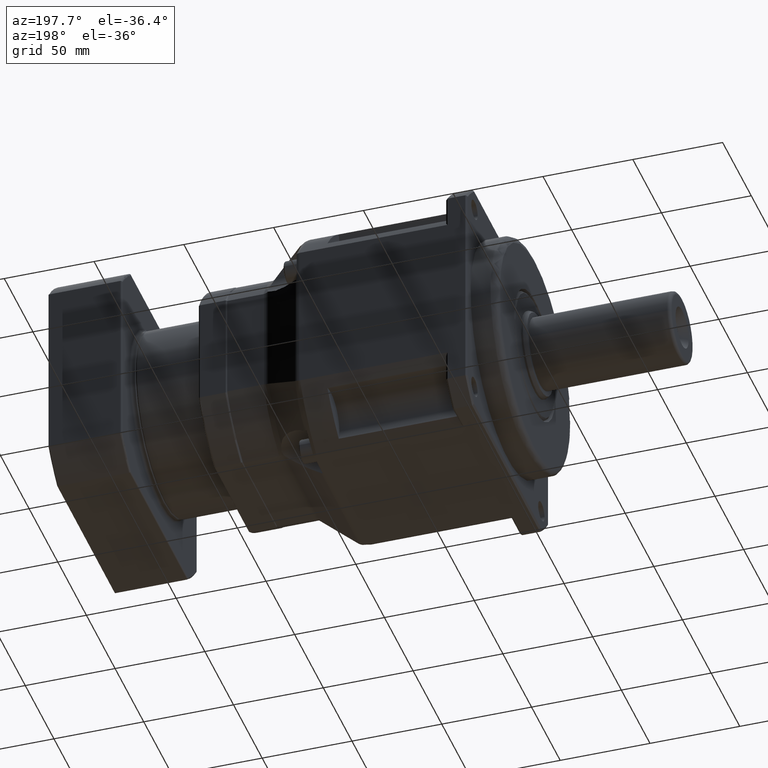
[diagram: clean part render]
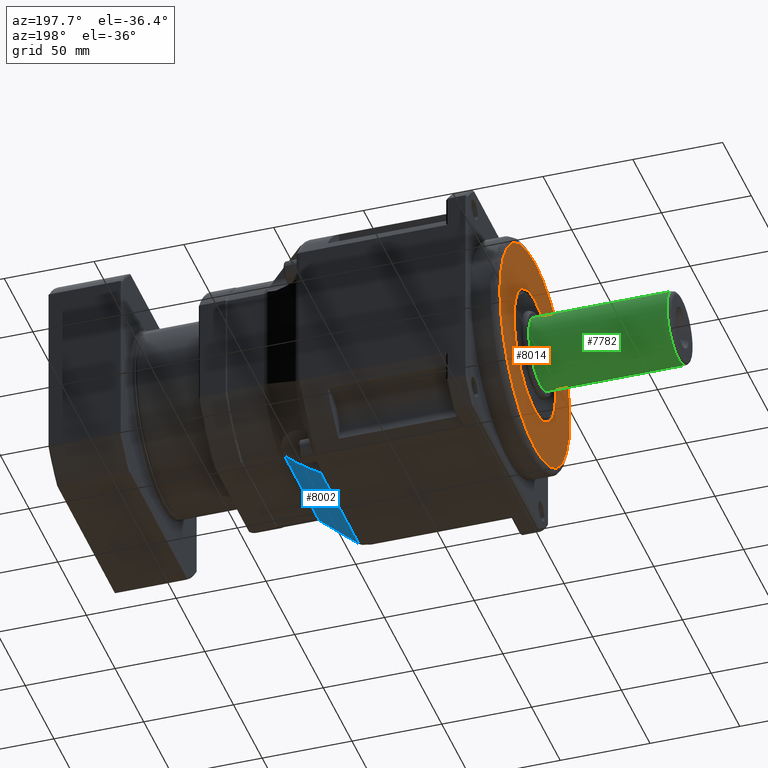
[diagram: same view with three faces highlighted in distinct colors, each labeled with its STEP entity id]
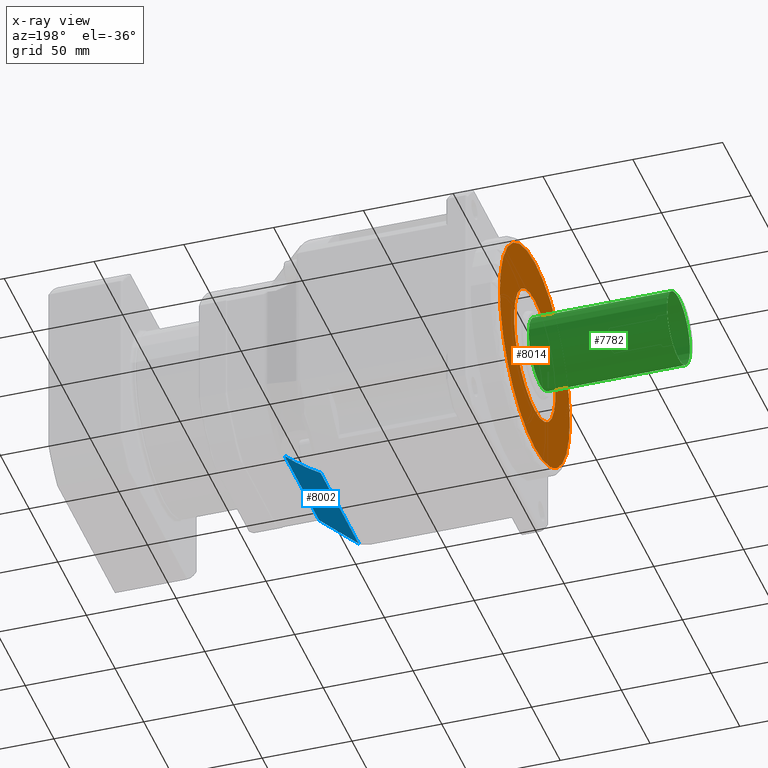
[diagram: x-ray of the same camera — body ghosted, the three highlighted faces saturated]
A machine part, auxiliary view with three faces highlighted in distinct colors.
The next image is the same camera in x-ray (body ghosted, the three faces saturated) — at least one of them is partly hidden behind the body in this view.
Their STEP definitions:

[orange] entity #8014 — the highlighted planar face has unit normal (1, -0, -0).
#1327=PLANE('',#8789);
#1611=FACE_BOUND('',#2720,.T.);
#2017=FACE_OUTER_BOUND('',#2719,.T.);
#2719=EDGE_LOOP('',(#6228));
#2720=EDGE_LOOP('',(#6229));
#3274=CIRCLE('',#8788,36.1547005383792);
#3275=CIRCLE('',#8790,61.);
#3847=VERTEX_POINT('',#13850);
#3848=VERTEX_POINT('',#13853);
#4716=EDGE_CURVE('',#3847,#3847,#3274,.T.);
#4717=EDGE_CURVE('',#3848,#3848,#3275,.T.);
#6228=ORIENTED_EDGE('',*,*,#4717,.F.);
#6229=ORIENTED_EDGE('',*,*,#4716,.F.);
#8014=ADVANCED_FACE('',(#2017,#1611),#1327,.F.);
#8788=AXIS2_PLACEMENT_3D('',#13851,#10373,#10374);
#8789=AXIS2_PLACEMENT_3D('',#13852,#10375,#10376);
#8790=AXIS2_PLACEMENT_3D('',#13854,#10377,#10378);
#10373=DIRECTION('center_axis',(-1.,9.99200722162628E-16,9.84803175675623E-16));
#10374=DIRECTION('ref_axis',(-9.84803175675621E-16,1.5681900222825E-15,
-1.));
#10375=DIRECTION('center_axis',(1.,-9.99200722162628E-16,-9.84803175675623E-16));
#10376=DIRECTION('ref_axis',(0.,2.8421709430404E-15,-1.));
#10377=DIRECTION('center_axis',(1.,-9.99200722162628E-16,-9.84803175675623E-16));
#10378=DIRECTION('ref_axis',(-9.84803175675621E-16,1.5681900222825E-15,
-1.));
#13850=CARTESIAN_POINT('',(-265.559385272836,-150.310004596179,-40.8478254545529));
#13851=CARTESIAN_POINT('Origin',(-265.559385272836,-150.310004596179,-77.0025259929322));
#13852=CARTESIAN_POINT('Origin',(-265.559385272836,-150.310004596179,-77.0025259929322));
#13853=CARTESIAN_POINT('',(-265.559385272836,-150.310004596179,-16.0025259929322));
#13854=CARTESIAN_POINT('Origin',(-265.559385272836,-150.310004596179,-77.0025259929322));

[blue] entity #8002 — the highlighted planar face has unit normal (-0.5408, -0, 0.8412).
#15=ELLIPSE('',#8758,27.7388616284887,15.);
#73=B_SPLINE_CURVE_WITH_KNOTS('',3,(#12978,#12979,#12980,#12981),
 .UNSPECIFIED.,.F.,.F.,(4,4),(0.,0.0208347293827103),.UNSPECIFIED.);
#129=B_SPLINE_CURVE_WITH_KNOTS('',3,(#13510,#13511,#13512,#13513),
 .UNSPECIFIED.,.F.,.F.,(4,4),(0.512041675489485,0.540788790606659),
 .UNSPECIFIED.);
#409=LINE('',#13025,#796);
#433=LINE('',#13538,#820);
#442=LINE('',#13751,#829);
#796=VECTOR('',#10232,60.655079676211);
#820=VECTOR('',#10298,66.4247235612198);
#829=VECTOR('',#10347,24.105594712999);
#1322=PLANE('',#8775);
#2005=FACE_OUTER_BOUND('',#2702,.T.);
#2702=EDGE_LOOP('',(#6174,#6175,#6176,#6177,#6178,#6179));
#3750=VERTEX_POINT('',#12971);
#3751=VERTEX_POINT('',#12977);
#3758=VERTEX_POINT('',#13024);
#3814=VERTEX_POINT('',#13501);
#3815=VERTEX_POINT('',#13509);
#3819=VERTEX_POINT('',#13531);
#4579=EDGE_CURVE('',#3750,#3751,#73,.T.);
#4587=EDGE_CURVE('',#3751,#3758,#409,.T.);
#4664=EDGE_CURVE('',#3814,#3815,#129,.T.);
#4670=EDGE_CURVE('',#3819,#3814,#433,.T.);
#4674=EDGE_CURVE('',#3758,#3819,#15,.F.);
#4709=EDGE_CURVE('',#3815,#3750,#442,.T.);
#6174=ORIENTED_EDGE('',*,*,#4587,.F.);
#6175=ORIENTED_EDGE('',*,*,#4579,.F.);
#6176=ORIENTED_EDGE('',*,*,#4709,.F.);
#6177=ORIENTED_EDGE('',*,*,#4664,.F.);
#6178=ORIENTED_EDGE('',*,*,#4670,.F.);
#6179=ORIENTED_EDGE('',*,*,#4674,.F.);
#8002=ADVANCED_FACE('',(#2005),#1322,.F.);
#8758=AXIS2_PLACEMENT_3D('',#13557,#10303,#10304);
#8775=AXIS2_PLACEMENT_3D('',#13750,#10345,#10346);
#10232=DIRECTION('',(3.35119347122022E-17,1.,1.08171322141128E-15));
#10298=DIRECTION('',(-6.22778684250183E-17,-1.,-1.10020560736952E-15));
#10303=DIRECTION('center_axis',(-0.540757591313498,-8.91792045286179E-16,
0.841178475376554));
#10304=DIRECTION('ref_axis',(0.841178475376554,-4.28163574513253E-16,0.540757591313498));
#10345=DIRECTION('center_axis',(-0.540757591313498,-8.91792045286179E-16,
0.841178475376554));
#10346=DIRECTION('ref_axis',(0.841178475376554,0.,0.540757591313499));
#10347=DIRECTION('',(0.755238106831924,0.440335368196058,0.485510211534807));
#12971=CARTESIAN_POINT('',(-135.954449130973,-180.894386098563,-135.399352758877));
#12977=CARTESIAN_POINT('',(-135.794663797686,-180.813084085931,-135.29663361605));
#12978=CARTESIAN_POINT('Ctrl Pts',(-135.954449140712,-180.894381674805,
-135.399346298933));
#12979=CARTESIAN_POINT('Ctrl Pts',(-135.901999747796,-180.863800929808,
-135.365629596682));
#12980=CARTESIAN_POINT('Ctrl Pts',(-135.848705434246,-180.836726790738,
-135.331430174629));
#12981=CARTESIAN_POINT('Ctrl Pts',(-135.794603928616,-180.813141909977,
-135.29675103363));
#13024=CARTESIAN_POINT('',(-135.794663797686,-120.15800440972,-135.296633616049));
#13025=CARTESIAN_POINT('',(-135.794663797686,-100.552565437634,-135.296633616049));
#13501=CARTESIAN_POINT('',(-154.324106747988,-191.593040565218,-147.208418369815));
#13509=CARTESIAN_POINT('',(-154.159912846076,-191.508932022097,-147.102865147158));
#13510=CARTESIAN_POINT('Ctrl Pts',(-154.324171973419,-191.592965510038,
-147.208290371107));
#13511=CARTESIAN_POINT('Ctrl Pts',(-154.268400615476,-191.568274065272,
-147.172543360192));
#13512=CARTESIAN_POINT('Ctrl Pts',(-154.213631683007,-191.540252348263,
-147.137398685184));
#13513=CARTESIAN_POINT('Ctrl Pts',(-154.159912846076,-191.508932022097,
-147.102865147158));
#13531=CARTESIAN_POINT('',(-154.324106747987,-125.168317003998,-147.208418369815));
#13538=CARTESIAN_POINT('',(-154.324106747987,-93.8025654376335,-147.208418369815));
#13557=CARTESIAN_POINT('Origin',(-153.223778734149,-110.185004596179,-146.501064646633));
#13750=CARTESIAN_POINT('Origin',(-155.559385272837,-108.295126279088,-148.002525992932));
#13751=CARTESIAN_POINT('',(-155.559385272837,-192.324882913271,-148.002525992932));

[green] entity #7782 — the highlighted cylindrical surface (bore or boss wall) has radius 20 mm, axis along (1, 0, -0).
#1509=FACE_BOUND('',#2386,.T.);
#1785=FACE_OUTER_BOUND('',#2385,.T.);
#2385=EDGE_LOOP('',(#5309));
#2386=EDGE_LOOP('',(#5310));
#3130=CIRCLE('',#8418,20.);
#3132=CIRCLE('',#8421,20.);
#3502=VERTEX_POINT('',#11621);
#3504=VERTEX_POINT('',#11626);
#4239=EDGE_CURVE('',#3502,#3502,#3130,.T.);
#4241=EDGE_CURVE('',#3504,#3504,#3132,.T.);
#5309=ORIENTED_EDGE('',*,*,#4239,.F.);
#5310=ORIENTED_EDGE('',*,*,#4241,.F.);
#7223=CYLINDRICAL_SURFACE('',#8424,20.);
#7782=ADVANCED_FACE('',(#1785,#1509),#7223,.T.);
#8418=AXIS2_PLACEMENT_3D('',#11622,#9463,#9464);
#8421=AXIS2_PLACEMENT_3D('',#11627,#9469,#9470);
#8424=AXIS2_PLACEMENT_3D('',#11631,#9475,#9476);
#9463=DIRECTION('center_axis',(1.,1.83082988844647E-16,-1.15918820918505E-15));
#9464=DIRECTION('ref_axis',(-1.12874117147291E-15,-0.120311270720417,-0.992736217802916));
#9469=DIRECTION('center_axis',(-1.,-1.83082988844647E-16,1.15918820918505E-15));
#9470=DIRECTION('ref_axis',(3.18559071611711E-16,-0.992736217802916,0.120311270720417));
#9475=DIRECTION('center_axis',(1.,1.83082988844647E-16,-1.15918820918505E-15));
#9476=DIRECTION('ref_axis',(-1.38147830110122E-16,0.992736217802916,-0.120311270720417));
#11621=CARTESIAN_POINT('',(-268.559385272836,-130.455280240121,-79.4087514073405));
#11622=CARTESIAN_POINT('Origin',(-268.559385272836,-150.310004596179,-77.0025259929322));
#11626=CARTESIAN_POINT('',(-345.559385272836,-130.455280240121,-79.4087514073404));
#11627=CARTESIAN_POINT('Origin',(-345.559385272836,-150.310004596179,-77.0025259929321));
#11631=CARTESIAN_POINT('Origin',(-308.059385272836,-150.310004596179,-77.0025259929321));